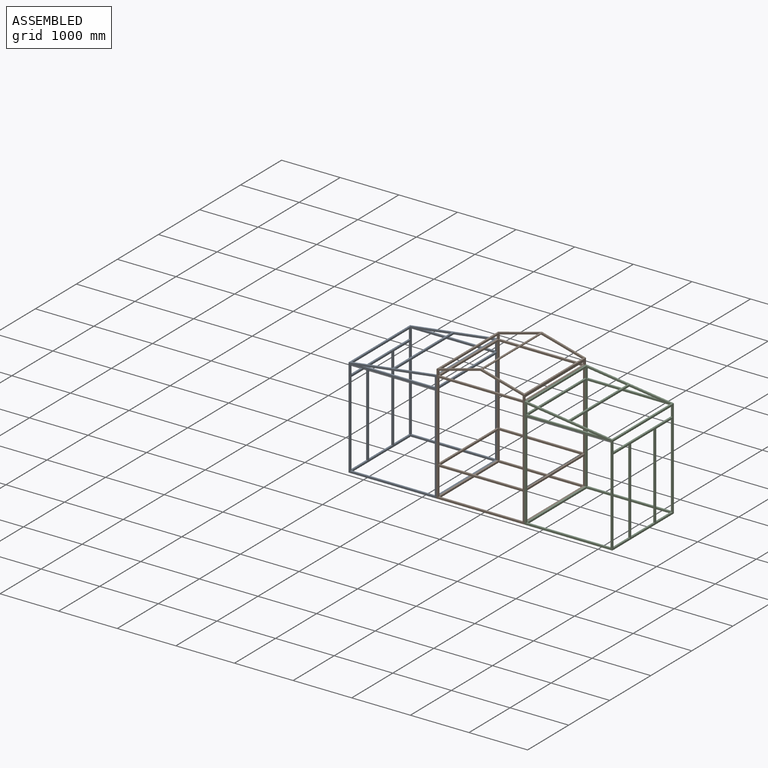
[diagram: assembled view]
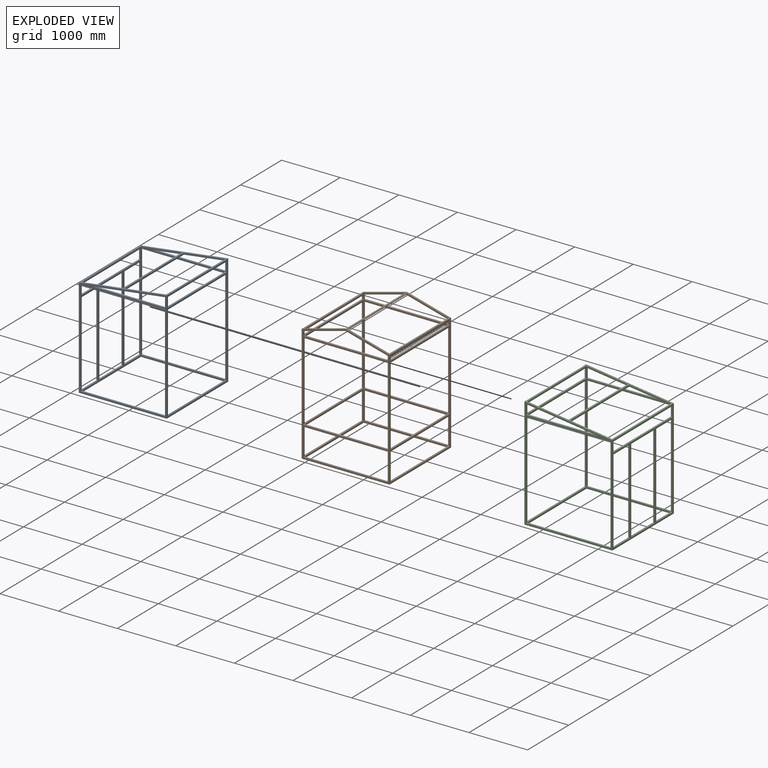
[diagram: exploded view]
GUIDED TOUR — MATED ASSEMBLY (Onshape document c59c3d74ccafe79b5cd9425b, AutoMate assembly c59c3d74ccafe79b5cd9425b_67373912313b5aa71960cbe1_3d79a43b114814cddcad24fd_default)

This assembly has 3 components, labeled P0..P2 below (a component is one placed occurrence of a part; the same part can appear more than once), held together by 2 mates. A mate is a constraint between two components; its type names the relative motion it leaves free:
  FASTENED — locks the two components together rigidly (no relative motion).
Axis/direction vectors are unit vectors and 'through' points are millimeter coordinates, both in the assembly's world frame.

MATES
  1. FASTENED "Fastened 1": P0 <-> P1, direction (1.000, 0.000, 0.000) through (-2712.79, 438.35, -2473.49) mm
  2. FASTENED "Fastened 2": P2 <-> P1, direction (-1.000, 0.000, 0.000) through (-1212.79, 438.35, -2473.49) mm

ASSEMBLY ORDER
  1. P2 — the base component [order verified]
  2. P1 [order verified]
  3. P0 [order verified]
Order-tag legend:
  [order verified] — this step's position reverses a verified removal order: the component was checked to insert without passing through the ones already placed.

Of the 3 components, 3 carry the full construction recipe — the FeatureScript program that regenerates the part's solid from scratch; the rest are supplied as boundary geometry only.
Each toured component is shown spotlighted twice — in the assembled view, then in the exploded view, where a leader line traces a displaced component back to its assembled socket (saturated green if recipe-attached, orange if geometry-only; every other component desaturated gray) — followed by its recipe or geometry summary and the mates that hold it.
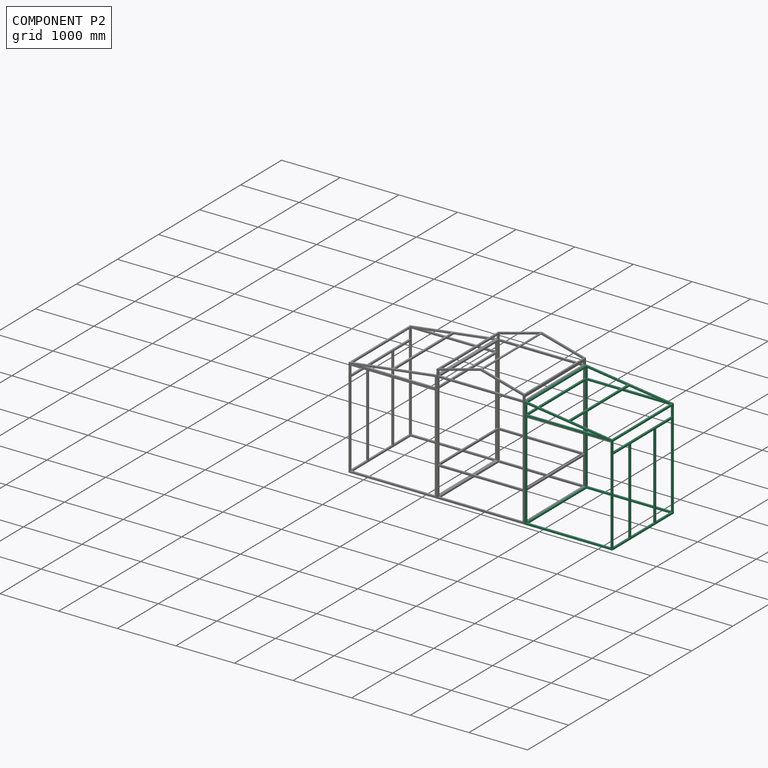
[diagram: component P2 — assembled]
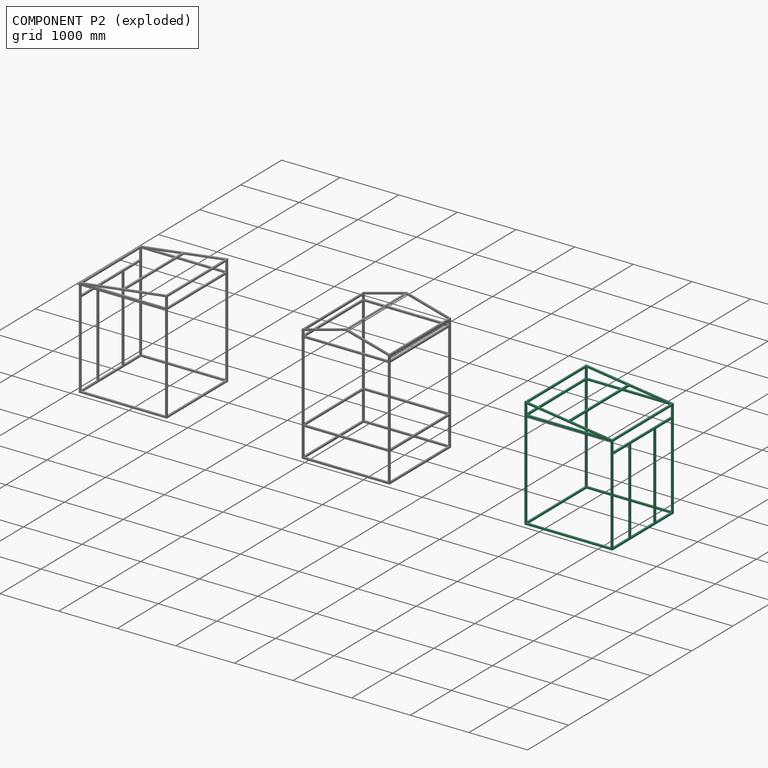
[diagram: component P2 — exploded]
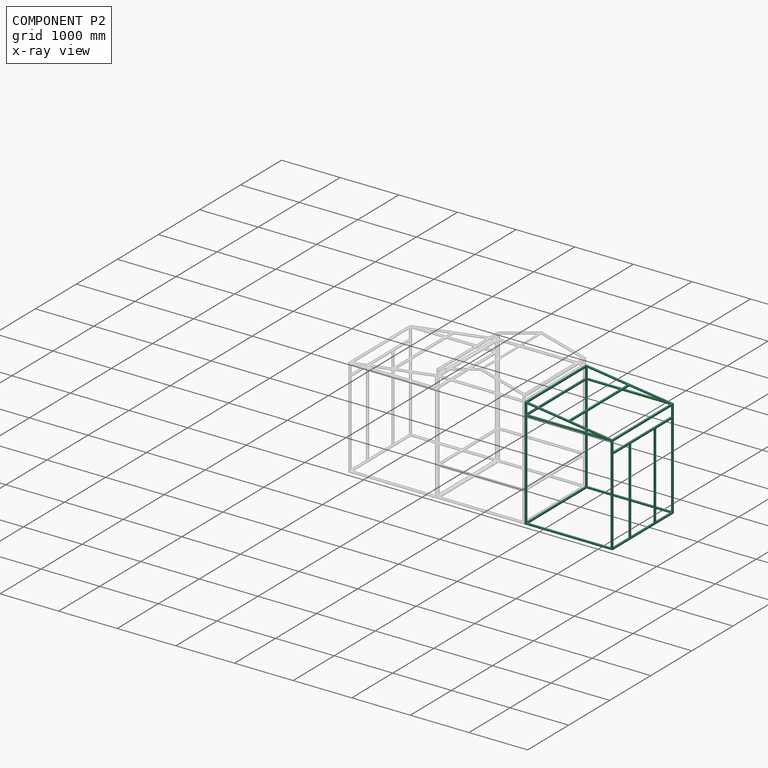
[diagram: component P2 — x-ray view]
COMPONENT P2 — same part as P0 (CADFS 00444647); its construction recipe is shown at P0.
Held by: FASTENED mate "Fastened 2" to P1.
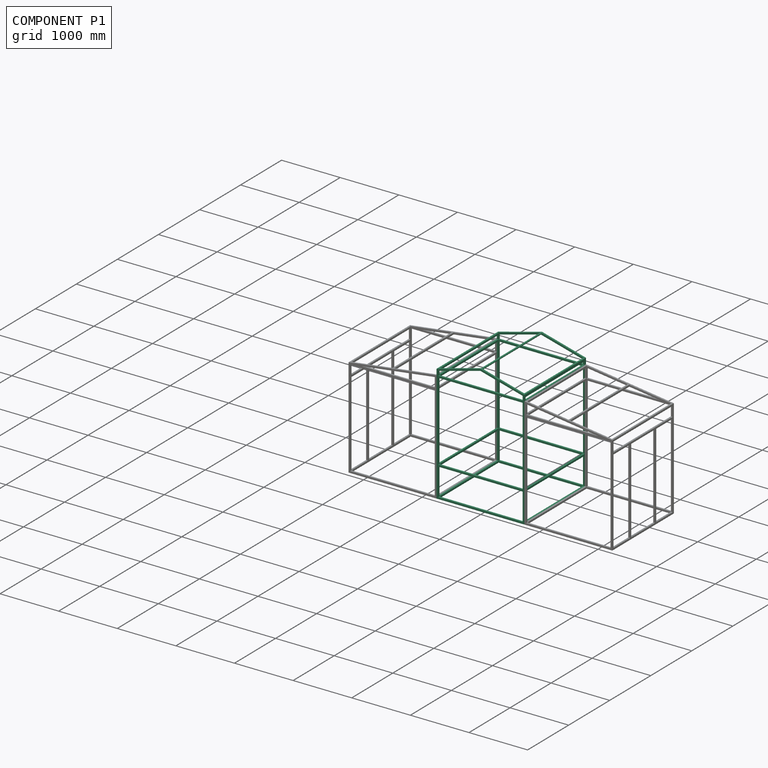
[diagram: component P1 — assembled]
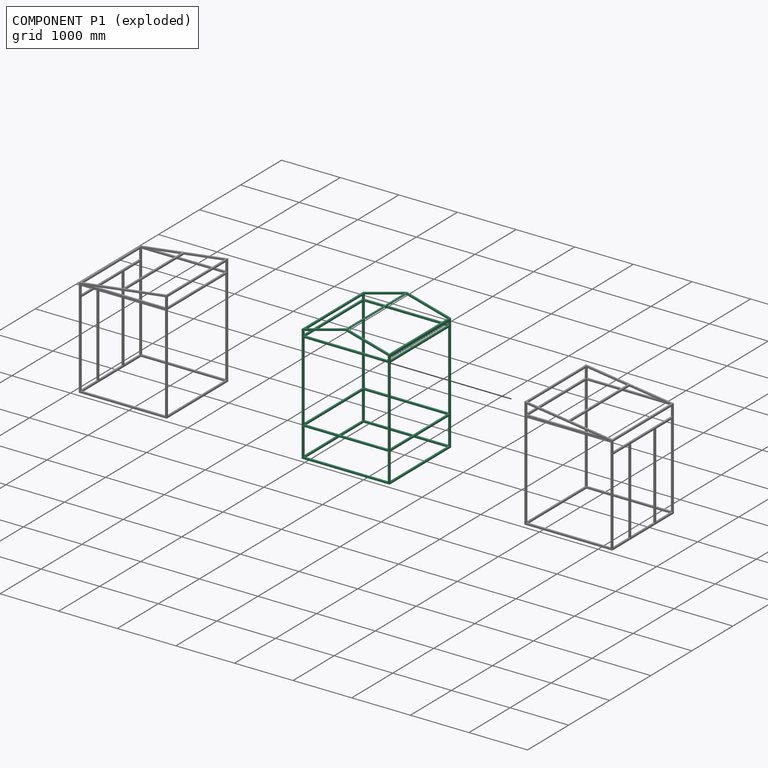
[diagram: component P1 — exploded]
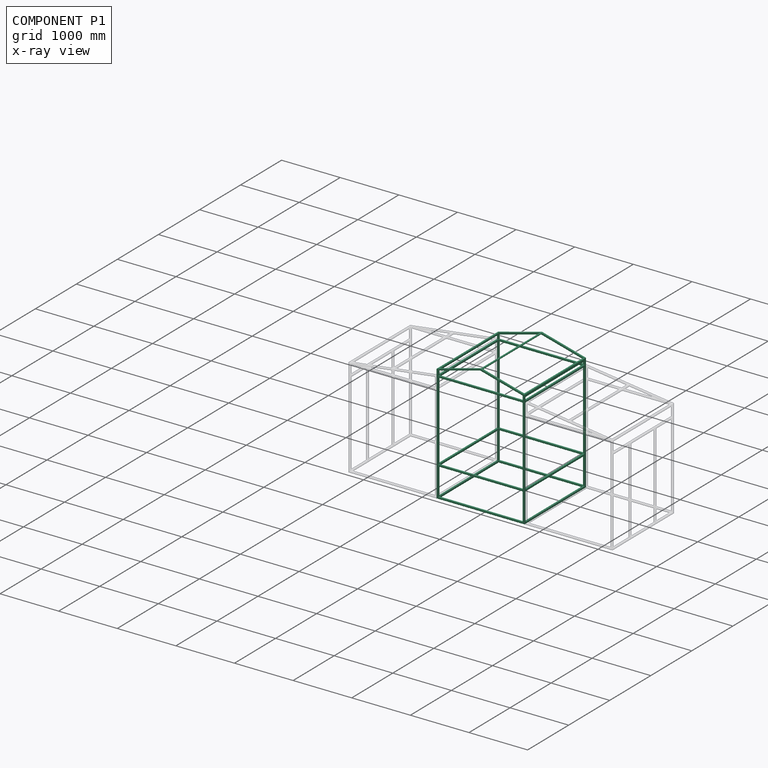
[diagram: component P1 — x-ray view]
COMPONENT P1 — recipe-attached (CADFS 00444646, mesh-verified: the recipe's output STEP matches this component's geometry to below the mesh-comparison resolution (tessellation chordal tolerance ~4.58 mm)).
Held by: FASTENED mate "Fastened 1" to P0; FASTENED mate "Fastened 2" to P2.
Construction recipe (FeatureScript — the CAD program that rebuilds this solid; sketch coordinates are in the units given by the * unit suffixes, e.g. mm):

FeatureScript 1511;
import(path : "onshape/std/geometry.fs", version : "1511.0");
import(path : "onshape/std/common.fs", version : "1511.0");
const mm = millimeter;
const VERTEX = EntityType.VERTEX;
const EDGE = EntityType.EDGE;
const FACE = EntityType.FACE;
const BODY = EntityType.BODY;
function v(x, y){return vector(x, y);}
function OD(order){return orderDisambiguation(order);}
function OSD(set){return originalSetDisambiguation(set);}
function TD(topology){return topologyDisambiguation(topology);}
function TDD(query){return trueDependencyDisambiguation(query);}
function sQuery(a, b, c) {return sketchEntityQuery(a, b, c);}

annotation { "Feature Type Name" : "Feature", "Feature Type Description" : "" }
export const myFeature = defineFeature(function(context is Context, id is Id, definition is map)
    precondition{}
    {
        {
            var Q0;
            Q0=qCreatedBy(makeId("Front.planeOp"),FACE);
            var sketch = newSketch(context, id + "F0", { "sketchPlane" : qUnion([Q0])});
            skLineSegment(sketch, "E0.bottom", {"start": v(30, 0) * mm, "end": v(1470, 0) * mm});
            skLineSegment(sketch, "E0.left", {"start": v(0, 0) * mm, "end": v(0, 1500) * mm});
            skLineSegment(sketch, "E0.right", {"start": v(1500, 0) * mm, "end": v(1500, 1500) * mm});
            skLineSegment(sketch, "E1.0", {"start": v(30, 30) * mm, "end": v(30, 1370) * mm});
            skLineSegment(sketch, "E1.1", {"start": v(30, 30) * mm, "end": v(1470, 30) * mm});
            skLineSegment(sketch, "E1.2", {"start": v(1470, 30) * mm, "end": v(1470, 1370) * mm});
            skLineSegment(sketch, "E2.top", {"start": v(0, -500) * mm, "end": v(30, -500) * mm});
            skLineSegment(sketch, "E2.left", {"start": v(0, 0) * mm, "end": v(0, -500) * mm});
            skLineSegment(sketch, "E2.right", {"start": v(30, 0) * mm, "end": v(30, -500) * mm});
            skLineSegment(sketch, "E3.top", {"start": v(1500, -500) * mm, "end": v(1470, -500) * mm});
            skLineSegment(sketch, "E3.left", {"start": v(1500, 0) * mm, "end": v(1500, -500) * mm});
            skLineSegment(sketch, "E3.right", {"start": v(1470, 0) * mm, "end": v(1470, -500) * mm});
            skLineSegment(sketch, "E4", {"start": v(0, 1500) * mm, "end": v(750, 1700) * mm});
            skLineSegment(sketch, "E5", {"start": v(750, 1700) * mm, "end": v(1500, 1500) * mm});
            skLineSegment(sketch, "E6.0", {"start": v(750, 1668.95) * mm, "end": v(1470, 1476.95) * mm});
            skLineSegment(sketch, "E6.1", {"start": v(30, 1476.95) * mm, "end": v(750, 1668.95) * mm});
            skLineSegment(sketch, "E7.bottom", {"start": v(30, -500) * mm, "end": v(1470, -500) * mm});
            skLineSegment(sketch, "E7.top", {"start": v(30, -470) * mm, "end": v(1470, -470) * mm});
            skLineSegment(sketch, "E7.left", {"start": v(30, -500) * mm, "end": v(30, -470) * mm});
            skLineSegment(sketch, "E7.right", {"start": v(1470, -500) * mm, "end": v(1470, -470) * mm});
            skLineSegment(sketch, "E8.bottom", {"start": v(30, -470) * mm, "end": v(0, -470) * mm});
            skLineSegment(sketch, "E8.top", {"start": v(30, -500) * mm, "end": v(0, -500) * mm});
            skLineSegment(sketch, "E8.left", {"start": v(30, -470) * mm, "end": v(30, -500) * mm});
            skLineSegment(sketch, "E8.right", {"start": v(0, -470) * mm, "end": v(0, -500) * mm});
            skLineSegment(sketch, "E9.bottom", {"start": v(30, 1400) * mm, "end": v(1470, 1400) * mm});
            skLineSegment(sketch, "E9.top", {"start": v(30, 1370) * mm, "end": v(1470, 1370) * mm});
            skLineSegment(sketch, "E10.trimOffspring", {"start": v(30, 1400) * mm, "end": v(30, 1476.95) * mm});
            skLineSegment(sketch, "E11.trimOffspring", {"start": v(1470, 1400) * mm, "end": v(1470, 1476.95) * mm});
            skSolve(sketch);
        }
        {
            var Q0;
            Q0 = qSketchRegion(id + "F0", true);
            extrude(context, id + "F1", {"entities" : qUnion([Q0]), "depth" : 30 * mm});
        }
        {
            var Q0;
            Q0=makeQuery(id+"F1.opExtrude","CAP_FACE",FACE,{"disambiguationData":[OSD([sQuery(id+"F0.wireOp",EDGE,"E0.bottom"),sQuery(id+"F0.wireOp",EDGE,"E0.left"),sQuery(id+"F0.wireOp",EDGE,"E0.right"),sQuery(id+"F0.wireOp",EDGE,"E1.0"),sQuery(id+"F0.wireOp",EDGE,"E1.1"),sQuery(id+"F0.wireOp",EDGE,"E1.2"),sQuery(id+"F0.wireOp",EDGE,"E2.left"),sQuery(id+"F0.wireOp",EDGE,"E2.right"),sQuery(id+"F0.wireOp",EDGE,"E3.top"),sQuery(id+"F0.wireOp",EDGE,"E3.left"),sQuery(id+"F0.wireOp",EDGE,"E3.right"),sQuery(id+"F0.wireOp",EDGE,"E4"),sQuery(id+"F0.wireOp",EDGE,"E5"),sQuery(id+"F0.wireOp",EDGE,"E6.0"),sQuery(id+"F0.wireOp",EDGE,"E6.1"),sQuery(id+"F0.wireOp",EDGE,"E7.bottom"),sQuery(id+"F0.wireOp",EDGE,"E7.top"),sQuery(id+"F0.wireOp",EDGE,"E8.top"),sQuery(id+"F0.wireOp",EDGE,"E8.right"),sQuery(id+"F0.wireOp",EDGE,"E9.bottom"),sQuery(id+"F0.wireOp",EDGE,"E9.top"),sQuery(id+"F0.wireOp",EDGE,"E10.trimOffspring"),sQuery(id+"F0.wireOp",EDGE,"E11.trimOffspring")])],"isStart":false});
            var sketch = newSketch(context, id + "F2", { "sketchPlane" : qUnion([Q0])});
            skLineSegment(sketch, "E12.bottom", {"start": v(0, 1500) * mm, "end": v(30, 1500) * mm});
            skLineSegment(sketch, "E12.top", {"start": v(0, 1470) * mm, "end": v(30, 1470) * mm});
            skLineSegment(sketch, "E12.left", {"start": v(0, 1500) * mm, "end": v(0, 1470) * mm});
            skLineSegment(sketch, "E12.right", {"start": v(30, 1500) * mm, "end": v(30, 1470) * mm});
            skLineSegment(sketch, "E13.bottom", {"start": v(1500, 1500) * mm, "end": v(1470, 1500) * mm});
            skLineSegment(sketch, "E13.top", {"start": v(1500, 1454.2) * mm, "end": v(1470, 1454.2) * mm});
            skLineSegment(sketch, "E13.left", {"start": v(1500, 1500) * mm, "end": v(1500, 1454.2) * mm});
            skLineSegment(sketch, "E13.right", {"start": v(1470, 1500) * mm, "end": v(1470, 1454.2) * mm});
            skLineSegment(sketch, "E14.bottom", {"start": v(30, 1370) * mm, "end": v(0, 1370) * mm});
            skLineSegment(sketch, "E14.top", {"start": v(30, 1400) * mm, "end": v(0, 1400) * mm});
            skLineSegment(sketch, "E14.left", {"start": v(30, 1370) * mm, "end": v(30, 1400) * mm});
            skLineSegment(sketch, "E14.right", {"start": v(0, 1370) * mm, "end": v(0, 1400) * mm});
            skLineSegment(sketch, "E15.bottom", {"start": v(1470, 1370) * mm, "end": v(1500, 1370) * mm});
            skLineSegment(sketch, "E15.top", {"start": v(1470, 1400) * mm, "end": v(1500, 1400) * mm});
            skLineSegment(sketch, "E15.left", {"start": v(1470, 1370) * mm, "end": v(1470, 1400) * mm});
            skLineSegment(sketch, "E15.right", {"start": v(1500, 1370) * mm, "end": v(1500, 1400) * mm});
            skLineSegment(sketch, "E16.bottom", {"start": v(30, 0) * mm, "end": v(0, 0) * mm});
            skLineSegment(sketch, "E16.top", {"start": v(30, 30) * mm, "end": v(0, 30) * mm});
            skLineSegment(sketch, "E16.left", {"start": v(30, 0) * mm, "end": v(30, 30) * mm});
            skLineSegment(sketch, "E16.right", {"start": v(0, 0) * mm, "end": v(0, 30) * mm});
            skLineSegment(sketch, "E17.bottom", {"start": v(30, -470) * mm, "end": v(0, -470) * mm});
            skLineSegment(sketch, "E17.top", {"start": v(30, -500) * mm, "end": v(0, -500) * mm});
            skLineSegment(sketch, "E17.left", {"start": v(30, -470) * mm, "end": v(30, -500) * mm});
            skLineSegment(sketch, "E17.right", {"start": v(0, -470) * mm, "end": v(0, -500) * mm});
            skLineSegment(sketch, "E18.bottom", {"start": v(1470, 0) * mm, "end": v(1500, 0) * mm});
            skLineSegment(sketch, "E18.top", {"start": v(1470, 30) * mm, "end": v(1500, 30) * mm});
            skLineSegment(sketch, "E18.left", {"start": v(1470, 0) * mm, "end": v(1470, 30) * mm});
            skLineSegment(sketch, "E18.right", {"start": v(1500, 0) * mm, "end": v(1500, 30) * mm});
            skLineSegment(sketch, "E19.bottom", {"start": v(1500, -500) * mm, "end": v(1470, -500) * mm});
            skLineSegment(sketch, "E19.top", {"start": v(1500, -470) * mm, "end": v(1470, -470) * mm});
            skLineSegment(sketch, "E19.left", {"start": v(1500, -500) * mm, "end": v(1500, -470) * mm});
            skLineSegment(sketch, "E19.right", {"start": v(1470, -500) * mm, "end": v(1470, -470) * mm});
            skCircle(sketch, "E20", {"center": v(750, 1684.6) * mm, "radius": 15.4 * mm});
            skSolve(sketch);
        }
        {
            var Q0;
            Q0 = qSketchRegion(id + "F2", true);
            extrude(context, id + "F3", {"entities" : qUnion([Q0]), "operationType" : NewBodyOperationType.ADD, "depth" : 1440 * mm});
        }
        {
            var Q0;
            Q0=makeQuery(id+"F3.opExtrude","CAP_FACE",FACE,{"disambiguationData":[OSD([sQuery(id+"F2.wireOp",EDGE,"E16.bottom"),sQuery(id+"F2.wireOp",EDGE,"E16.top"),sQuery(id+"F2.wireOp",EDGE,"E16.left"),sQuery(id+"F2.wireOp",EDGE,"E16.right")])],"isStart":false});
            var sketch = newSketch(context, id + "F4", { "sketchPlane" : qUnion([Q0])});
            skLineSegment(sketch, "E21.bottom", {"start": v(0, 0) * mm, "end": v(1500, 0) * mm});
            skLineSegment(sketch, "E21.top", {"start": v(0, -500) * mm, "end": v(1500, -500) * mm});
            skLineSegment(sketch, "E21.left", {"start": v(0, 0) * mm, "end": v(0, -500) * mm});
            skLineSegment(sketch, "E21.right", {"start": v(1500, 0) * mm, "end": v(1500, -500) * mm});
            skLineSegment(sketch, "E22.top", {"start": v(0, 1500) * mm, "end": v(30, 1500) * mm});
            skLineSegment(sketch, "E22.left", {"start": v(0, 0) * mm, "end": v(0, 1500) * mm});
            skLineSegment(sketch, "E22.right", {"start": v(1500, 0) * mm, "end": v(1500, 1500) * mm});
            skLineSegment(sketch, "E23.0", {"start": v(1470, 0) * mm, "end": v(1470, -470) * mm});
            skLineSegment(sketch, "E23.1", {"start": v(30, -470) * mm, "end": v(1470, -470) * mm});
            skLineSegment(sketch, "E23.2", {"start": v(30, 0) * mm, "end": v(30, -470) * mm});
            skLineSegment(sketch, "E24.0", {"start": v(30, 30) * mm, "end": v(30, 1370) * mm});
            skLineSegment(sketch, "E24.1", {"start": v(30, 30) * mm, "end": v(1470, 30) * mm});
            skLineSegment(sketch, "E24.2", {"start": v(1470, 30) * mm, "end": v(1470, 1370) * mm});
            skLineSegment(sketch, "E25.trimOffspring", {"start": v(1470, 1500) * mm, "end": v(1500, 1500) * mm});
            skLineSegment(sketch, "E26.bottom", {"start": v(30, 1400) * mm, "end": v(1470, 1400) * mm});
            skLineSegment(sketch, "E26.top", {"start": v(30, 1370) * mm, "end": v(1470, 1370) * mm});
            skLineSegment(sketch, "E27", {"start": v(0, 1500) * mm, "end": v(750, 1700) * mm});
            skLineSegment(sketch, "E28", {"start": v(750, 1700) * mm, "end": v(1500, 1500) * mm});
            skLineSegment(sketch, "E29.0", {"start": v(750, 1668.95) * mm, "end": v(1492.27, 1471.01) * mm});
            skLineSegment(sketch, "E29.1", {"start": v(7.73, 1471.01) * mm, "end": v(750, 1668.95) * mm});
            skLineSegment(sketch, "E30.trimOffspring", {"start": v(30, 1400) * mm, "end": v(30, 1500) * mm});
            skLineSegment(sketch, "E31.trimOffspring", {"start": v(1470, 1400) * mm, "end": v(1470, 1500) * mm});
            skSolve(sketch);
        }
        {
            var Q0;
            Q0 = qSketchRegion(id + "F4", true);
            extrude(context, id + "F5", {"entities" : qUnion([Q0]), "operationType" : NewBodyOperationType.ADD, "depth" : 30 * mm});
        }
    });
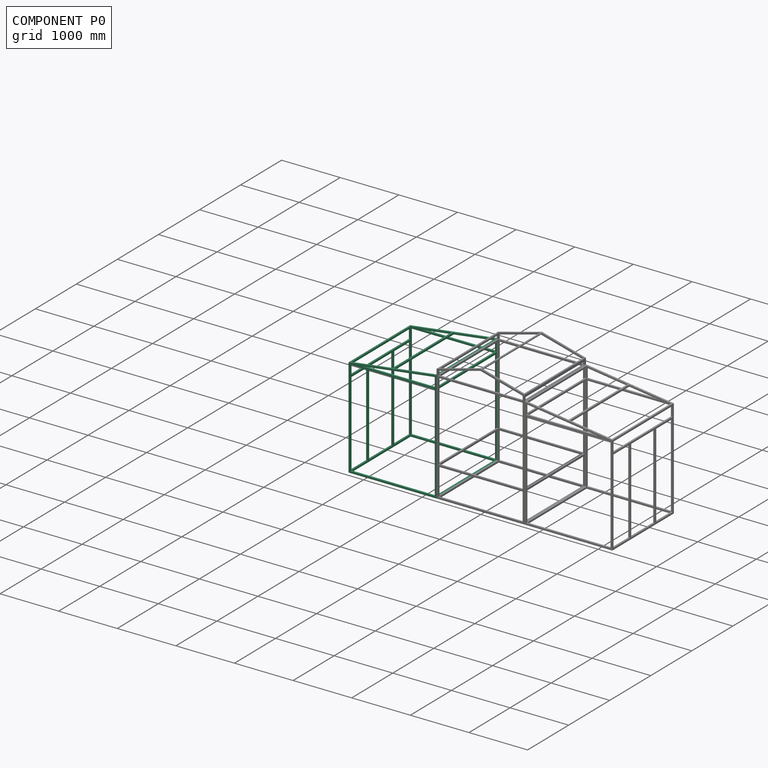
[diagram: component P0 — assembled]
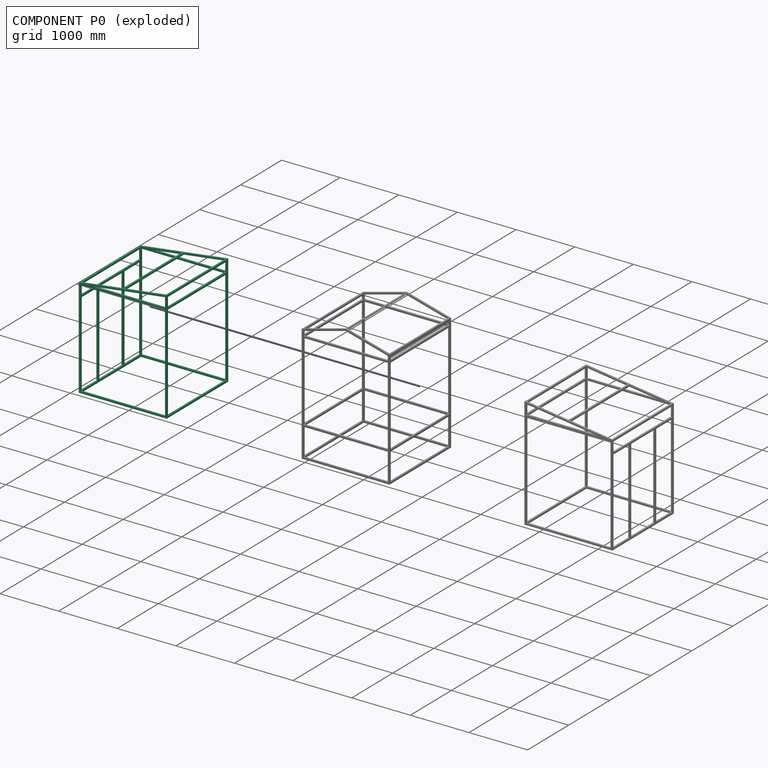
[diagram: component P0 — exploded]
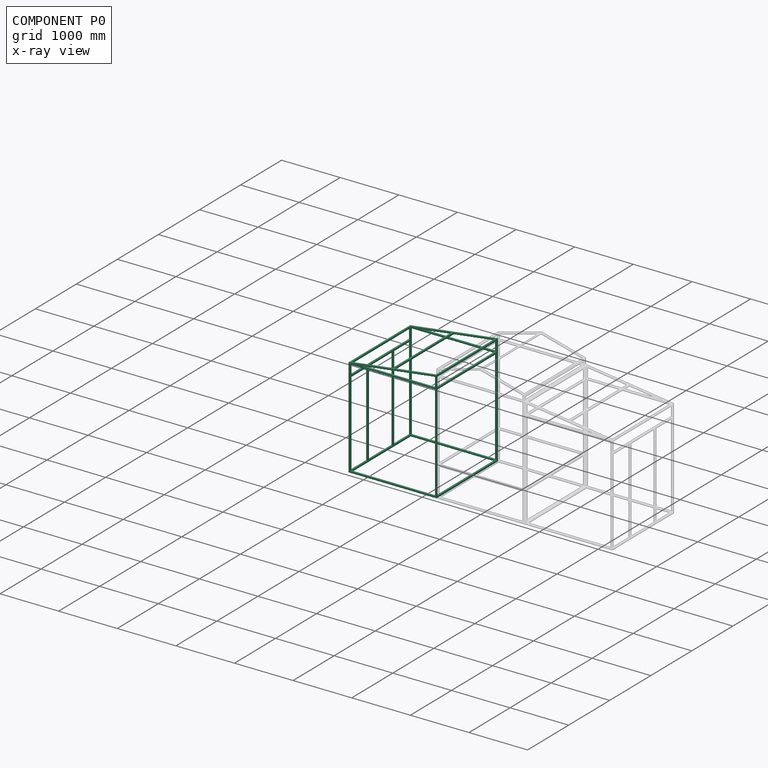
[diagram: component P0 — x-ray view]
COMPONENT P0 — recipe-attached (CADFS 00444647, mesh-verified: the recipe's output STEP matches this component's geometry to below the mesh-comparison resolution (tessellation chordal tolerance ~4.27 mm)).
Held by: FASTENED mate "Fastened 1" to P1.
Construction recipe (FeatureScript — the CAD program that rebuilds this solid; sketch coordinates are in the units given by the * unit suffixes, e.g. mm):

FeatureScript 1511;
import(path : "onshape/std/geometry.fs", version : "1511.0");
import(path : "onshape/std/common.fs", version : "1511.0");
const mm = millimeter;
const VERTEX = EntityType.VERTEX;
const EDGE = EntityType.EDGE;
const FACE = EntityType.FACE;
const BODY = EntityType.BODY;
function v(x, y){return vector(x, y);}
function OD(order){return orderDisambiguation(order);}
function OSD(set){return originalSetDisambiguation(set);}
function TD(topology){return topologyDisambiguation(topology);}
function TDD(query){return trueDependencyDisambiguation(query);}
function sQuery(a, b, c) {return sketchEntityQuery(a, b, c);}

annotation { "Feature Type Name" : "Feature", "Feature Type Description" : "" }
export const myFeature = defineFeature(function(context is Context, id is Id, definition is map)
    precondition{}
    {
        {
            var Q0;
            Q0=qCreatedBy(makeId("Front.planeOp"),FACE);
            var sketch = newSketch(context, id + "F0", { "sketchPlane" : qUnion([Q0])});
            skLineSegment(sketch, "E0.bottom", {"start": v(0, 0) * mm, "end": v(1500, 0) * mm});
            skLineSegment(sketch, "E0.top", {"start": v(30, 1700) * mm, "end": v(1500, 1700) * mm});
            skLineSegment(sketch, "E0.left", {"start": v(0, 0) * mm, "end": v(0, 1700) * mm});
            skLineSegment(sketch, "E0.right", {"start": v(1500, 0) * mm, "end": v(1500, 1700) * mm});
            skLineSegment(sketch, "E1.0", {"start": v(30, 30) * mm, "end": v(30, 1670) * mm});
            skLineSegment(sketch, "E1.1", {"start": v(30, 30) * mm, "end": v(1470, 30) * mm});
            skLineSegment(sketch, "E1.2", {"start": v(1470, 30) * mm, "end": v(1470, 1670) * mm});
            skLineSegment(sketch, "E1.3", {"start": v(30, 1670) * mm, "end": v(1470, 1670) * mm});
            skLineSegment(sketch, "E2", {"start": v(0, 1700) * mm, "end": v(0, 1900) * mm});
            skLineSegment(sketch, "E3", {"start": v(0, 1900) * mm, "end": v(1500, 1700) * mm});
            skLineSegment(sketch, "E4.0", {"start": v(30, 1865.73) * mm, "end": v(1496.04, 1670.26) * mm});
            skLineSegment(sketch, "E4.1", {"start": v(30, 1500) * mm, "end": v(30, 1865.73) * mm});
            skSolve(sketch);
        }
        {
            var Q0;
            Q0 = qSketchRegion(id + "F0", true);
            extrude(context, id + "F1", {"entities" : qUnion([Q0]), "depth" : 30 * mm});
        }
        {
            var Q0;
            Q0=makeQuery(id+"F1.opExtrude","CAP_FACE",FACE,{"disambiguationData":[OSD([sQuery(id+"F0.wireOp",EDGE,"E0.bottom"),sQuery(id+"F0.wireOp",EDGE,"E0.top"),sQuery(id+"F0.wireOp",EDGE,"E0.left"),sQuery(id+"F0.wireOp",EDGE,"E0.right"),sQuery(id+"F0.wireOp",EDGE,"E1.0"),sQuery(id+"F0.wireOp",EDGE,"E1.1"),sQuery(id+"F0.wireOp",EDGE,"E1.2"),sQuery(id+"F0.wireOp",EDGE,"E1.3")])],"isStart":false});
            var sketch = newSketch(context, id + "F2", { "sketchPlane" : qUnion([Q0])});
            skLineSegment(sketch, "E5.bottom", {"start": v(0, 0) * mm, "end": v(30, 0) * mm});
            skLineSegment(sketch, "E5.top", {"start": v(0, 30) * mm, "end": v(30, 30) * mm});
            skLineSegment(sketch, "E5.left", {"start": v(0, 0) * mm, "end": v(0, 30) * mm});
            skLineSegment(sketch, "E5.right", {"start": v(30, 0) * mm, "end": v(30, 30) * mm});
            skLineSegment(sketch, "E6.bottom", {"start": v(1500, 0) * mm, "end": v(1470, 0) * mm});
            skLineSegment(sketch, "E6.top", {"start": v(1500, 30) * mm, "end": v(1470, 30) * mm});
            skLineSegment(sketch, "E6.left", {"start": v(1500, 0) * mm, "end": v(1500, 30) * mm});
            skLineSegment(sketch, "E6.right", {"start": v(1470, 0) * mm, "end": v(1470, 30) * mm});
            skLineSegment(sketch, "E7.bottom", {"start": v(30, 1700) * mm, "end": v(0, 1700) * mm});
            skLineSegment(sketch, "E7.top", {"start": v(30, 30) * mm, "end": v(0, 30) * mm});
            skLineSegment(sketch, "E8.bottom", {"start": v(1470, 1670) * mm, "end": v(1500, 1670) * mm});
            skLineSegment(sketch, "E8.top", {"start": v(1470, 1700) * mm, "end": v(1500, 1700) * mm});
            skLineSegment(sketch, "E8.left", {"start": v(1470, 1670) * mm, "end": v(1470, 1700) * mm});
            skLineSegment(sketch, "E8.right", {"start": v(1500, 1670) * mm, "end": v(1500, 1700) * mm});
            skLineSegment(sketch, "E9.bottom", {"start": v(30, 1865.73) * mm, "end": v(0, 1865.73) * mm});
            skLineSegment(sketch, "E9.top", {"start": v(30, 1895.73) * mm, "end": v(0, 1895.73) * mm});
            skLineSegment(sketch, "E9.left", {"start": v(30, 1865.73) * mm, "end": v(30, 1895.73) * mm});
            skLineSegment(sketch, "E9.right", {"start": v(0, 1865.73) * mm, "end": v(0, 1895.73) * mm});
            skLineSegment(sketch, "E10.bottom", {"start": v(735, 1802) * mm, "end": v(765, 1802) * mm});
            skLineSegment(sketch, "E10.top", {"start": v(735, 1772) * mm, "end": v(765, 1772) * mm});
            skLineSegment(sketch, "E10.left", {"start": v(735, 1802) * mm, "end": v(735, 1772) * mm});
            skLineSegment(sketch, "E10.right", {"start": v(765, 1802) * mm, "end": v(765, 1772) * mm});
            skLineSegment(sketch, "E11", {"start": v(30, 1670) * mm, "end": v(0, 1670) * mm});
            skLineSegment(sketch, "E12", {"start": v(30, 1700) * mm, "end": v(30, 1670) * mm});
            skLineSegment(sketch, "E13.bottom", {"start": v(0, 1700) * mm, "end": v(30, 1700) * mm});
            skLineSegment(sketch, "E13.top", {"start": v(0, 1670) * mm, "end": v(30, 1670) * mm});
            skLineSegment(sketch, "E13.left", {"start": v(0, 1700) * mm, "end": v(0, 1670) * mm});
            skSolve(sketch);
        }
        {
            var Q0;
            Q0 = qSketchRegion(id + "F2", true);
            extrude(context, id + "F3", {"entities" : qUnion([Q0]), "operationType" : NewBodyOperationType.ADD, "depth" : 1440 * mm});
        }
        {
            var Q0;
            Q0=makeQuery(id+"F3.opExtrude","CAP_FACE",FACE,{"disambiguationData":[OSD([sQuery(id+"F2.wireOp",EDGE,"E5.bottom"),sQuery(id+"F2.wireOp",EDGE,"E5.top"),sQuery(id+"F2.wireOp",EDGE,"E5.left"),sQuery(id+"F2.wireOp",EDGE,"E5.right")])],"isStart":false});
            var sketch = newSketch(context, id + "F4", { "sketchPlane" : qUnion([Q0])});
            skLineSegment(sketch, "E14", {"start": v(0, 0) * mm, "end": v(0, 1900) * mm});
            skLineSegment(sketch, "E15", {"start": v(0, 1900) * mm, "end": v(1500, 1700) * mm});
            skLineSegment(sketch, "E16", {"start": v(1500, 1700) * mm, "end": v(1500, 0) * mm});
            skLineSegment(sketch, "E17", {"start": v(1500, 0) * mm, "end": v(0, 0) * mm});
            skLineSegment(sketch, "E18.0", {"start": v(30, 1865.73) * mm, "end": v(1273, 1700) * mm});
            skLineSegment(sketch, "E18.1", {"start": v(30, 30) * mm, "end": v(30, 1670) * mm});
            skLineSegment(sketch, "E18.2", {"start": v(1470, 30) * mm, "end": v(30, 30) * mm});
            skLineSegment(sketch, "E18.3", {"start": v(1470, 1673.73) * mm, "end": v(1470, 30) * mm});
            skLineSegment(sketch, "E19.bottom", {"start": v(30, 1670) * mm, "end": v(1500, 1670) * mm});
            skLineSegment(sketch, "E19.top", {"start": v(30, 1700) * mm, "end": v(1273, 1700) * mm});
            skLineSegment(sketch, "E19.right", {"start": v(1500, 1670) * mm, "end": v(1500, 1700) * mm});
            skLineSegment(sketch, "E20.trimOffspring", {"start": v(30, 1700) * mm, "end": v(30, 1865.73) * mm});
            skSolve(sketch);
        }
        {
            var Q0;
            Q0 = qSketchRegion(id + "F4", true);
            extrude(context, id + "F5", {"entities" : qUnion([Q0]), "operationType" : NewBodyOperationType.ADD, "depth" : 30 * mm});
        }
        {
            var Q0;
            Q0=makeQuery(id+"F5.boolean.opBoolean","MERGE",FACE,{"derivedFrom":[makeQuery(id+"F3.boolean.opBoolean","MERGE",FACE,{"derivedFrom":[makeQuery(id+"F1.opExtrude","SWEPT_FACE",FACE,{"disambiguationData":[OSD([sQuery(id+"F0.wireOp",EDGE,"E0.right")])]}),makeQuery(id+"F3.opExtrude","SWEPT_FACE",FACE,{"disambiguationData":[OSD([sQuery(id+"F2.wireOp",EDGE,"E6.left")])]}),makeQuery(id+"F3.opExtrude","SWEPT_FACE",FACE,{"disambiguationData":[OSD([sQuery(id+"F2.wireOp",EDGE,"E8.right")])]})]}),makeQuery(id+"F5.opExtrude","SWEPT_FACE",FACE,{"disambiguationData":[OSD([sQuery(id+"F4.wireOp",EDGE,"E16"),sQuery(id+"F4.wireOp",EDGE,"E19.right")])]})]});
            var sketch = newSketch(context, id + "F6", { "sketchPlane" : qUnion([Q0])});
            skLineSegment(sketch, "E21", {"start": v(-1070, 30) * mm, "end": v(-1070, 1470) * mm});
            skLineSegment(sketch, "E22", {"start": v(-1070, 1470) * mm, "end": v(-1470, 1470) * mm});
            skLineSegment(sketch, "E23", {"start": v(-1470, 1470) * mm, "end": v(-1470, 1500) * mm});
            skLineSegment(sketch, "E24", {"start": v(-1470, 1500) * mm, "end": v(-30, 1500) * mm});
            skLineSegment(sketch, "E25", {"start": v(-30, 1500) * mm, "end": v(-30, 1470) * mm});
            skLineSegment(sketch, "E26", {"start": v(-30, 1470) * mm, "end": v(-430, 1470) * mm});
            skLineSegment(sketch, "E27", {"start": v(-430, 1470) * mm, "end": v(-430, 30) * mm});
            skLineSegment(sketch, "E28", {"start": v(-430, 30) * mm, "end": v(-460, 30) * mm});
            skLineSegment(sketch, "E29", {"start": v(-460, 30) * mm, "end": v(-460, 1470) * mm});
            skLineSegment(sketch, "E30", {"start": v(-460, 1470) * mm, "end": v(-1040, 1470) * mm});
            skLineSegment(sketch, "E31", {"start": v(-1040, 1470) * mm, "end": v(-1040, 30) * mm});
            skLineSegment(sketch, "E32", {"start": v(-1040, 30) * mm, "end": v(-1070, 30) * mm});
            skSolve(sketch);
        }
        {
            var Q0;
            Q0 = qSketchRegion(id + "F6", true);
            extrude(context, id + "F7", {"entities" : qUnion([Q0]), "operationType" : NewBodyOperationType.ADD, "oppositeDirection" : true, "depth" : 30 * mm});
        }
    });
PROVENANCE & LICENSES
Assembly (occurrences, transforms, mates, per-part STEP geometry): AutoMate dataset, Zenodo record 7776208, CC0.
Construction recipes: CADFS (HuggingFace VladPyatov/CADFS, CC-BY-4.0, layered over the ABC dataset), FeatureScript reconstruction programs keyed by ABC model id.
Join: ABC meta listings map ABC model id -> Onshape documentId; within a shared document, parts are matched by geometric signature (bounding-box dims + volume at 0.1% relative tolerance, exact B-rep face/solid counts).
Verification: 3 of this assembly's 3 components carry a recipe attachment, and every attachment is mesh-verified: the CADFS STEP and the AutoMate member STEP were compared as meshes in their shared local frame (symmetric sampled-point-to-mesh distance); worst across the 3 attachments: below the mesh-comparison resolution (tessellation chordal tolerance ~4.58 mm) on a 3056 mm part.
Renders: orthographic iso camera (az 35 / el 25); the floor grid conveys scale (grid pitch printed in each image; no ruler). In the exploded view each component is displaced by its stored offset vector: the offsets alone carry the explosion direction (mate normal/axis signs are not orientation cues and do not encode it), and separation distances are assigned per mate-chain, not proportionally to assembly-order depth.
